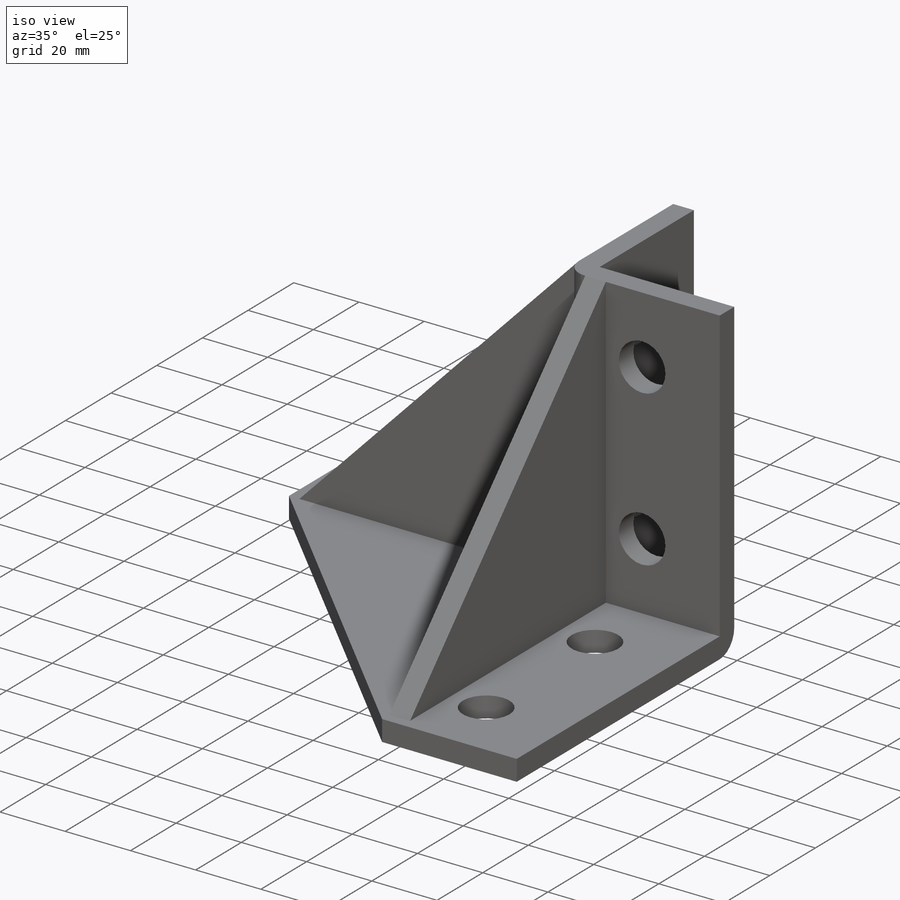
[diagram: iso view]
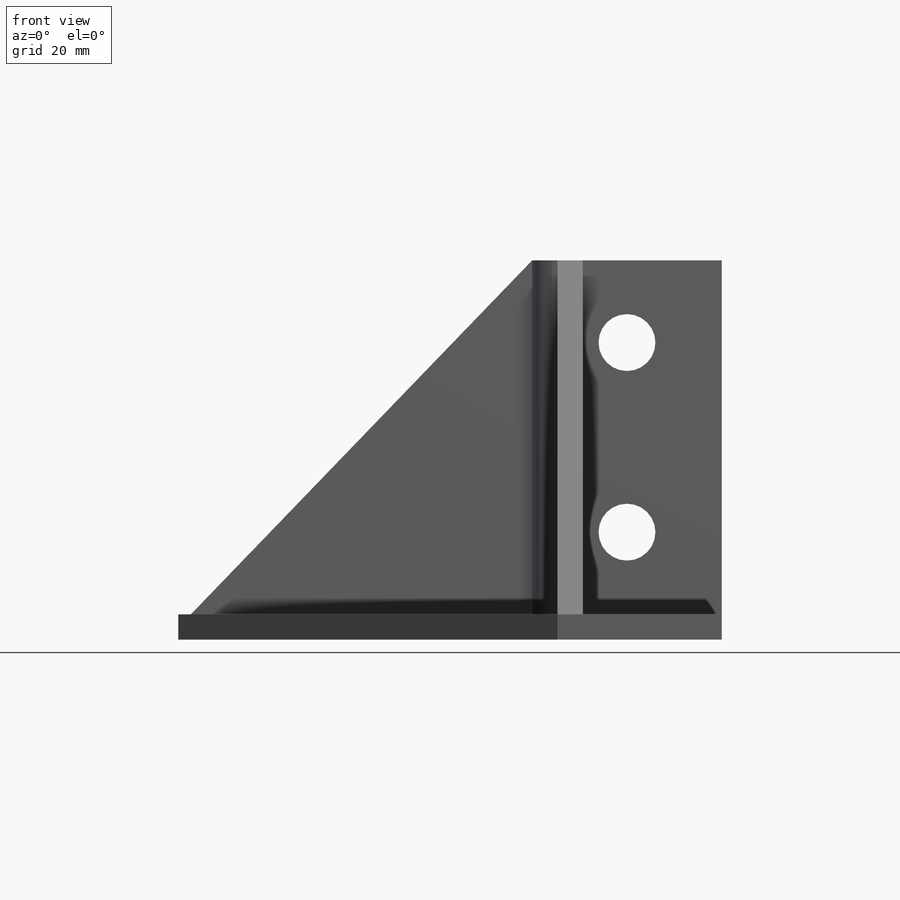
[diagram: front view]
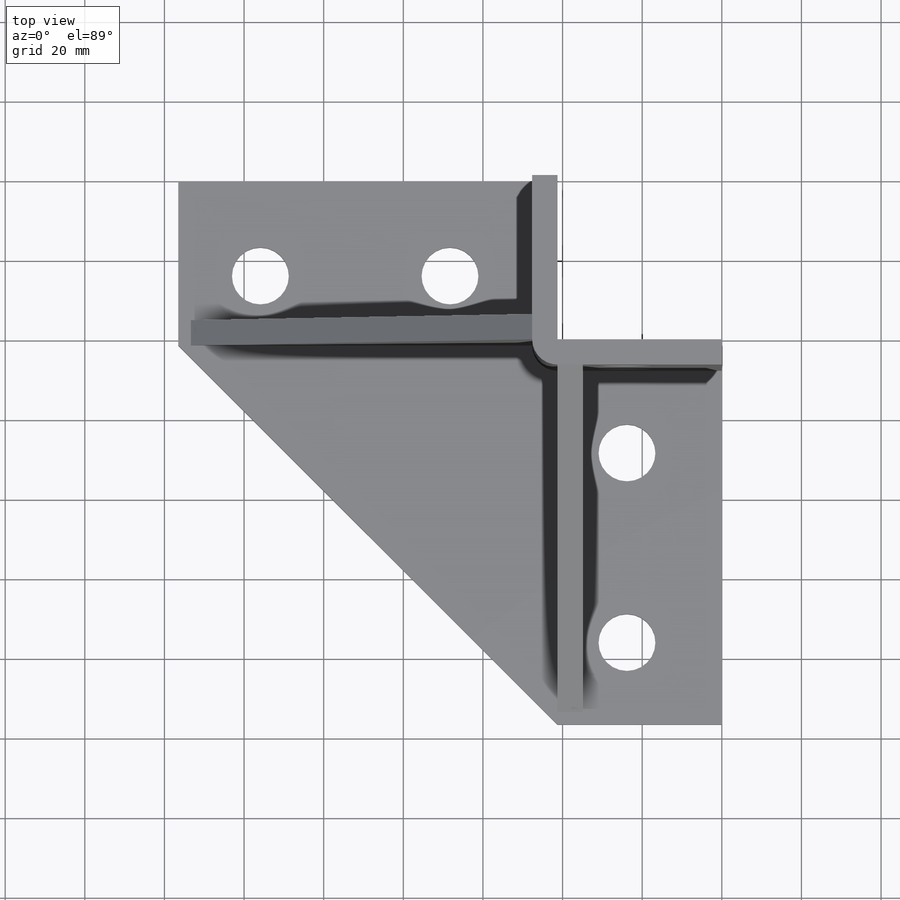
[diagram: top view]
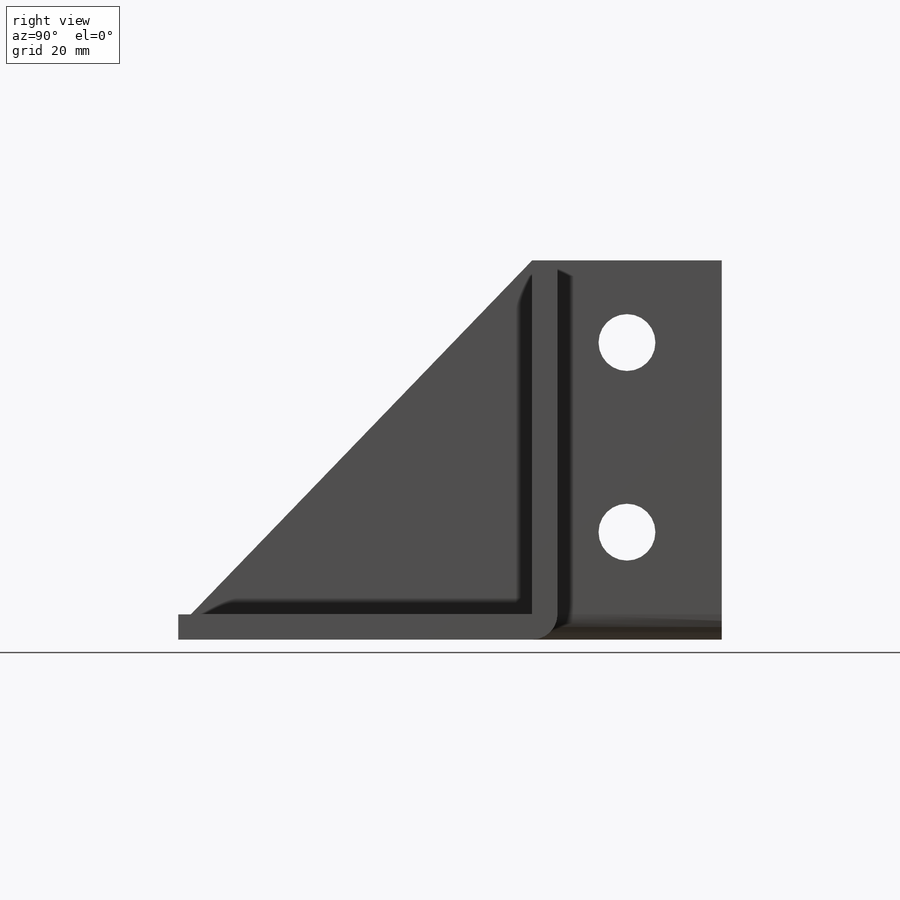
[diagram: right view]
SOLIDWORKS PART (.sldprt)
format: sldprt  version: not decoded by parser v0  size: 285,696 bytes
history: native  units: mm
features: sketch x8, extrude x2, material x1, hole x1, plane x1, mirror x1, fillet x1 + 1 further entry (+14 scaffold rows collapsed)
feature tree (30):
  scaffold x14  (default folders/planes/origin — collapsed)
  material  "Material <not specified>"
  "Design Table"
  sketch  "Sketch1"  dims[D1=95.25mm D2=41.275mm]
  extrude  "Base Plate"  Depth=6.35mm
  sketch  "Sketch2"  dims[D1=6.35mm D2=6.35mm]
  extrude  "Upper Leaf"  Depth=88.9mm
  sketch  "Sketch4"  dims[D1=6.35mm D2=6.35mm]
  sketch  "Sketch5"  dims[D1=3.175mm]
  sketch  "Sketch6"  dims[D1=47.625mm D2=20.6375mm]
  sketch  "Sketch7"  dims[D1=47.625mm D2=20.6375mm]
  hole  "9/16 (0.5625) Diameter Hole1"  Diameter=14.2875mm Depth=47.62505mm
  sketch  "3DSketch1"
  sketch  "Sketch10"  dims[hole-wizard template sketch: 60 standard entries collapsed; hole parameters kept: c18.Thru Hole Depth=~47.62505mm]
  plane  "Plane1"
  mirror  "Mirror1"
  fillet  "Fillet1"  Radius=6.35mm
decode coverage: 11 of 13 modeling features carry decoded parameters; 1 rows unclassified (native names shown)
note: ~ marks probable driven/reference dimensions
note: suppression state not decoded; provenance and decode notes live in map.json
